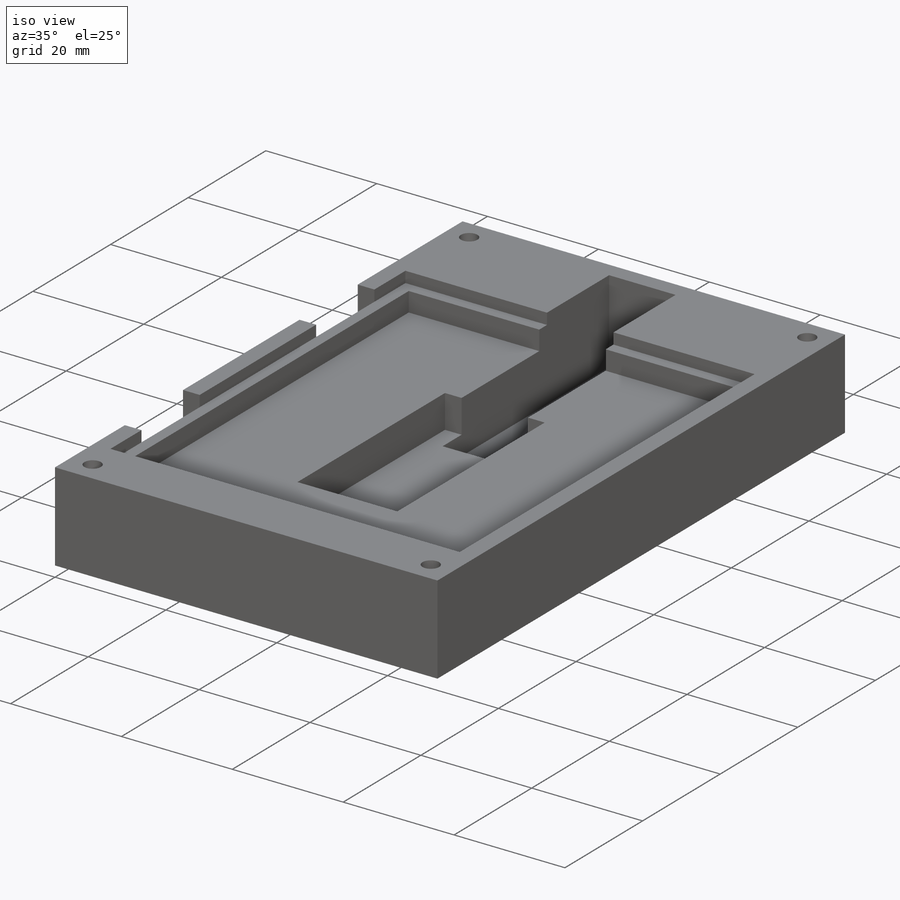
[diagram: iso view]
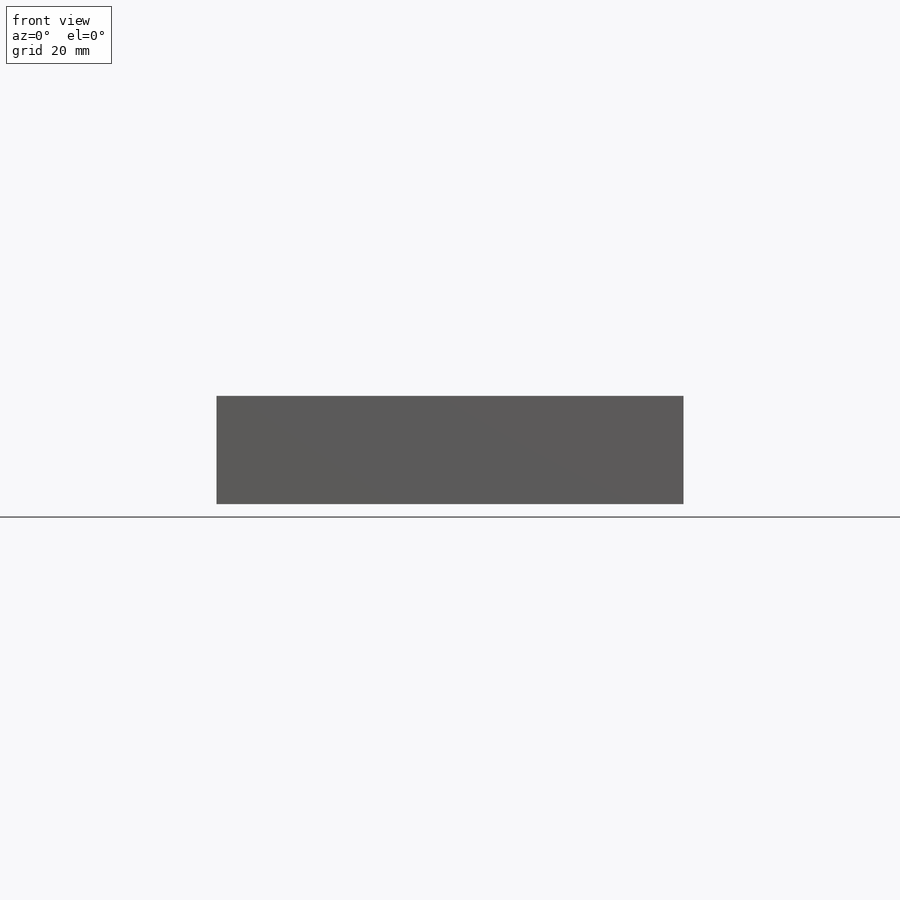
[diagram: front view]
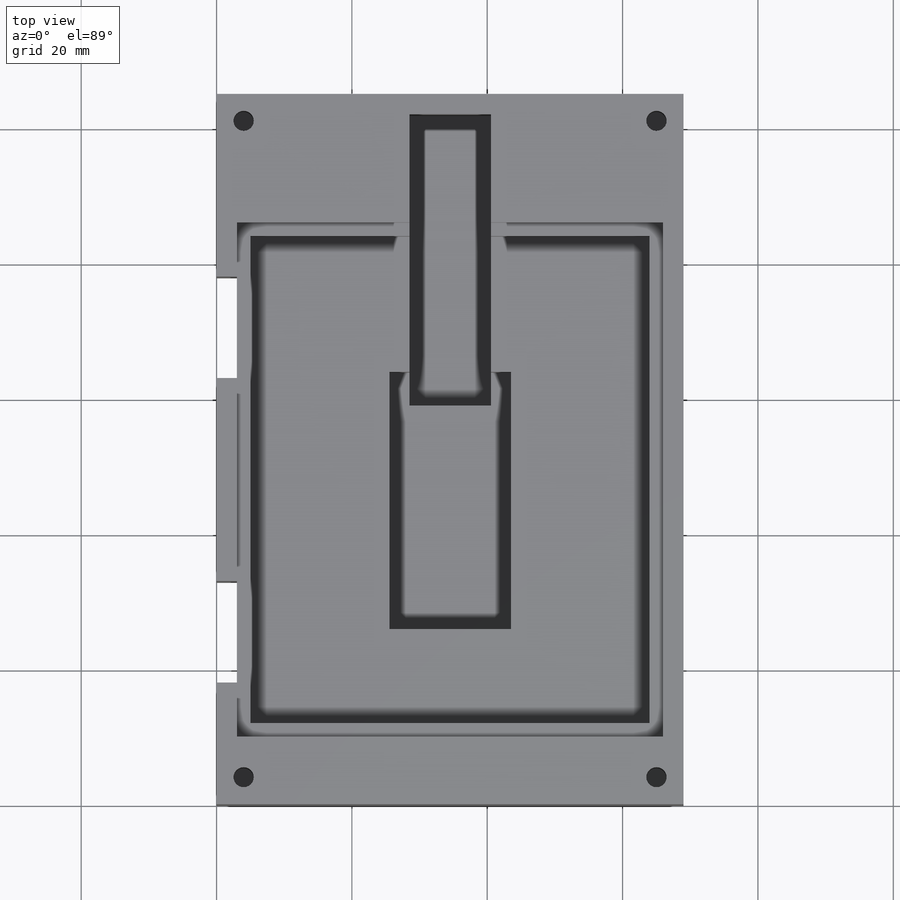
[diagram: top view]
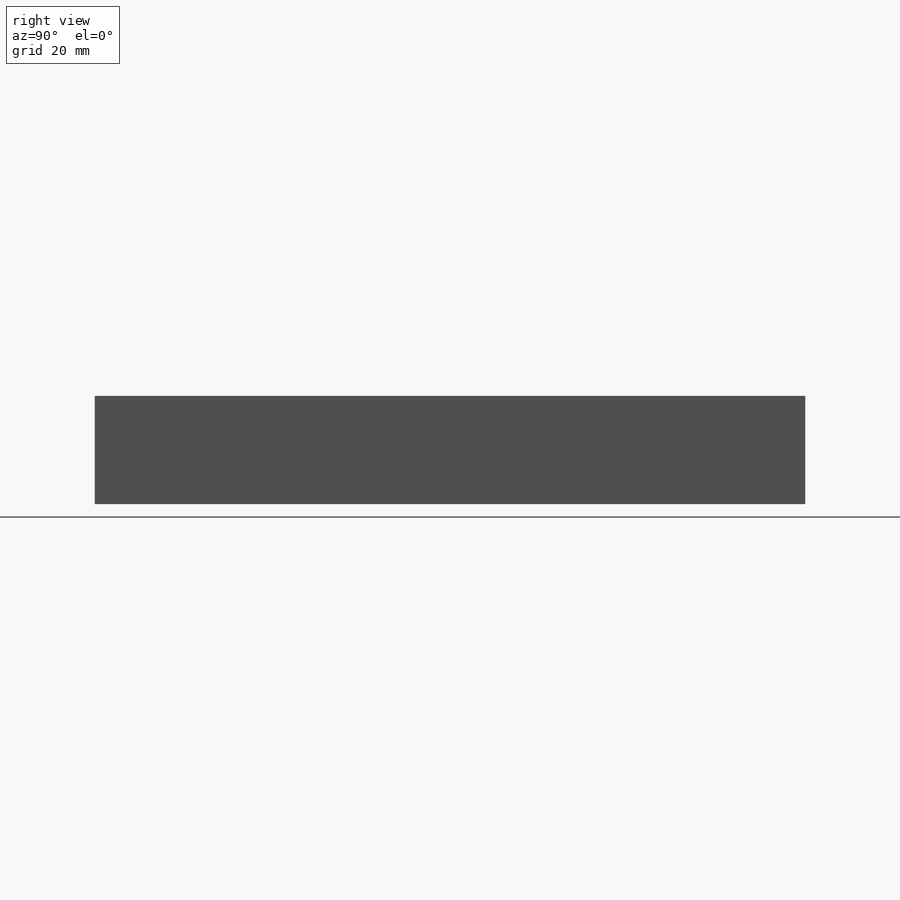
[diagram: right view]
SOLIDWORKS PART (.sldprt)
format: sldprt  version: not decoded by parser v0  size: 371,712 bytes
history: native  units: mm
features: sketch x10, cut_extrude x8, material x1, extrude x1, plane x1 (+12 scaffold rows collapsed)
feature tree (33):
  scaffold x12  (default folders/planes/origin — collapsed)
  material  "Material <not specified>"
  sketch  "Sketch1"  dims[D1=69.0mm D2=105.0mm]
  extrude  "Boss-Extrude1"  Depth=16mm
  sketch  "Sketch2"  dims[D1=63.0mm D2=76.0mm D3=3.0mm D4=10.0mm D5=63.0mm]
  cut_extrude  "Cut-Extrude1"  Depth=2mm
  sketch  "Sketch3"  dims[D1=2.0mm D2=2.0mm D3=2.0mm D4=2.0mm]
  cut_extrude  "Cut-Extrude2"  Depth=3.5mm
  sketch  "Sketch4"  dims[D1=18.0mm D2=38.0mm D3=20.0mm D4=20.46mm]
  cut_extrude  "Cut-Extrude3"  Depth=6mm
  sketch  "Sketch5"  dims[D1=12.0mm D2=3.0mm]
  cut_extrude  "Cut-Extrude4"  Depth=9.5mm
  sketch  "Sketch6"  dims[D1=3.0mm]
  cut_extrude  "Cut-Extrude5"  Depth=15mm
  sketch  "Sketch7"  dims[c1.D1=3.0mm c1.D2=3.0mm c1.D3=3.0mm c1.D4=3.0mm c1.D5=4.0mm c1.D6=4.0mm c1.D7=4.0mm c1.D8=~4.789188mm c2.D7=4.0mm c2.D8=4.0mm c2.D9=4.0mm c2.D10=4.0mm c2.D11=4.0mm c2.D12=4.0mm]
  cut_extrude  "Cut-Extrude6"  Depth=10mm
  plane  "Plane1"
  sketch  "Sketch10"  dims[D1=8.0mm D2=8.0mm D3=8.0mm D4=15.0mm D5=15.0mm D6=52.5mm D7=3.0mm D8=3.0mm D9=3.0mm]
  cut_extrude  "Cut-Extrude7"  Depth=10mm
  sketch  "Sketch11"
  sketch  "Sketch13"  dims[D1=8.0mm D2=15.0mm D3=8.0mm D4=15.0mm]
  cut_extrude  "Cut-Extrude8"  [1 undecoded]
decode coverage: 17 of 19 modeling features carry decoded parameters
note: ~ marks probable driven/reference dimensions
note: 1 parameter value undecoded
note: suppression state not decoded; provenance and decode notes live in map.json
